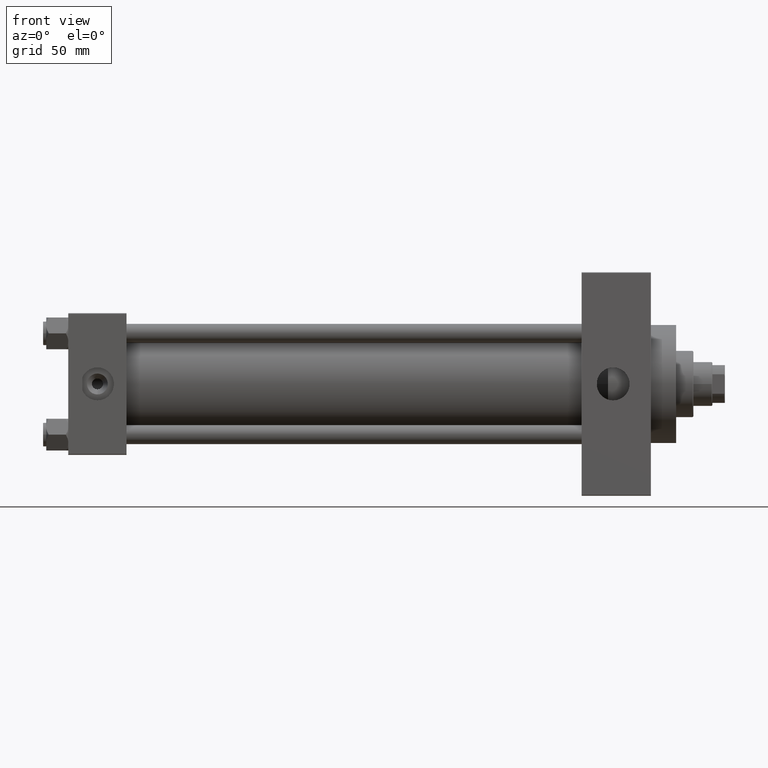
[diagram: clean part render]
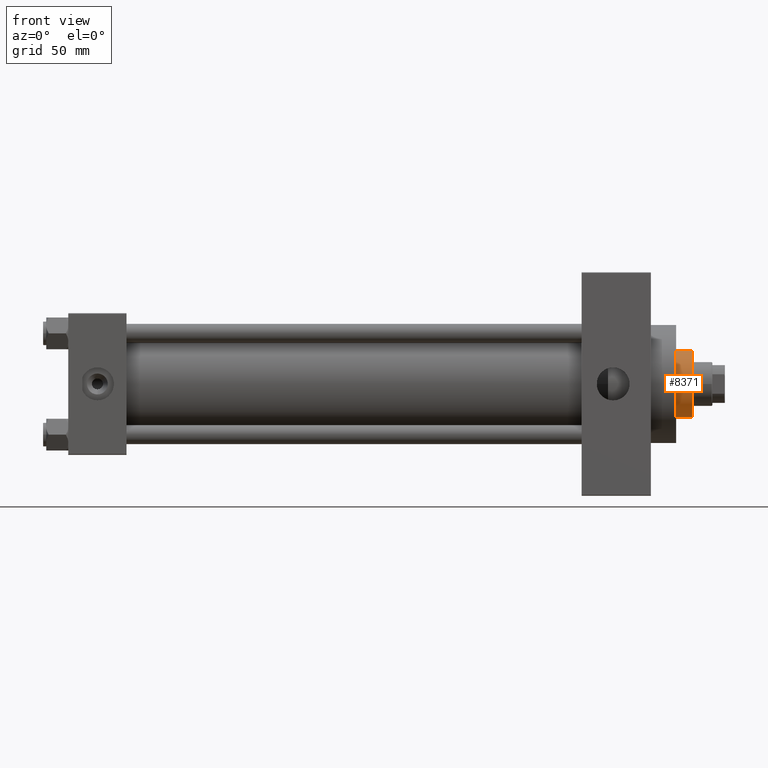
[diagram: same view with one face highlighted and labeled with its STEP entity id]
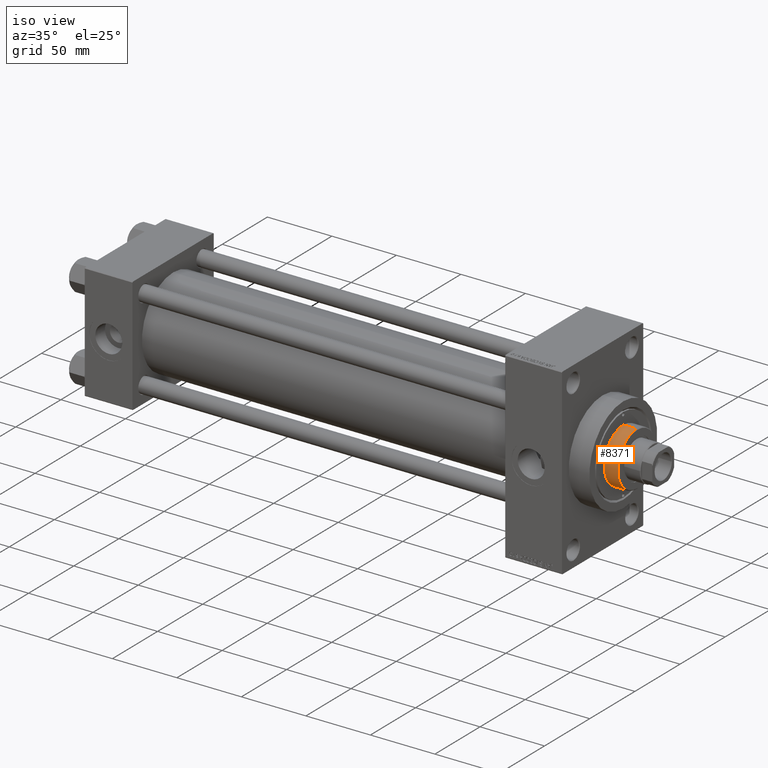
[diagram: same view with one face highlighted and labeled with its STEP entity id]
A machine part, front view. The second image highlights one B-rep face of the part: STEP entity #8371.
A second angle (iso view) of the same face is appended — the face is thin or edge-on in the first view.
In plain terms, the highlighted cylindrical surface (edge-blend (fillet) strip) has radius 21 mm, axis along (-1, 0, 0).
Its self-contained STEP definition (entity closure, byte-faithful):
#678 = CARTESIAN_POINT ( 'NONE',  ( -21.00000000000000000, 0.000000000000000000, 53.76000000000001933 ) ) ;
#891 = VECTOR ( 'NONE', #36578, 1000.000000000000000 ) ;
#1939 = VERTEX_POINT ( 'NONE', #19951 ) ;
#5183 = VECTOR ( 'NONE', #32460, 1000.000000000000000 ) ;
#8154 = CARTESIAN_POINT ( 'NONE',  ( -21.00000000000000000, 0.000000000000000000, 43.25999999999999801 ) ) ;
#8371 = ADVANCED_FACE ( 'NONE', ( #30059 ), #29822, .T. ) ;
#8974 = ORIENTED_EDGE ( 'NONE', *, *, #28358, .T. ) ;
#10898 = CARTESIAN_POINT ( 'NONE',  ( -21.00000000000000000, 0.000000000000000000, 54.26000000000000512 ) ) ;
#11376 = DIRECTION ( 'NONE',  ( -1.000000000000000000, 0.000000000000000000, 0.000000000000000000 ) ) ;
#13764 = DIRECTION ( 'NONE',  ( 1.000000000000000000, 0.000000000000000000, 0.000000000000000000 ) ) ;
#14441 = EDGE_CURVE ( 'NONE', #46626, #41029, #40355, .T. ) ;
#14553 = LINE ( 'NONE', #28941, #891 ) ;
#14823 = AXIS2_PLACEMENT_3D ( 'NONE', #25733, #43716, #28633 ) ;
#19951 = CARTESIAN_POINT ( 'NONE',  ( 21.00000000000000000, 2.571758278209441661E-15, 43.25999999999999801 ) ) ;
#21927 = DIRECTION ( 'NONE',  ( -0.000000000000000000, -0.000000000000000000, -1.000000000000000000 ) ) ;
#22124 = CARTESIAN_POINT ( 'NONE',  ( 0.000000000000000000, 0.000000000000000000, 43.25999999999999801 ) ) ;
#22578 = EDGE_CURVE ( 'NONE', #30853, #1939, #14553, .T. ) ;
#25115 = ORIENTED_EDGE ( 'NONE', *, *, #14441, .F. ) ;
#25733 = CARTESIAN_POINT ( 'NONE',  ( 0.000000000000000000, 0.000000000000000000, 53.76000000000001933 ) ) ;
#26266 = CIRCLE ( 'NONE', #14823, 21.00000000000000000 ) ;
#26465 = CARTESIAN_POINT ( 'NONE',  ( 0.000000000000000000, 0.000000000000000000, 54.26000000000000512 ) ) ;
#26818 = EDGE_CURVE ( 'NONE', #46626, #30853, #26266, .T. ) ;
#28358 = EDGE_CURVE ( 'NONE', #1939, #41029, #34724, .T. ) ;
#28633 = DIRECTION ( 'NONE',  ( 1.000000000000000000, 0.000000000000000000, 0.000000000000000000 ) ) ;
#28941 = CARTESIAN_POINT ( 'NONE',  ( 21.00000000000000000, 2.571758278209441661E-15, 54.26000000000000512 ) ) ;
#29822 = CYLINDRICAL_SURFACE ( 'NONE', #45596, 21.00000000000000000 ) ;
#30059 = FACE_OUTER_BOUND ( 'NONE', #30196, .T. ) ;
#30196 = EDGE_LOOP ( 'NONE', ( #31718, #33285, #8974, #25115 ) ) ;
#30853 = VERTEX_POINT ( 'NONE', #41399 ) ;
#31718 = ORIENTED_EDGE ( 'NONE', *, *, #26818, .T. ) ;
#32460 = DIRECTION ( 'NONE',  ( -0.000000000000000000, -0.000000000000000000, -1.000000000000000000 ) ) ;
#33285 = ORIENTED_EDGE ( 'NONE', *, *, #22578, .T. ) ;
#34724 = CIRCLE ( 'NONE', #37820, 21.00000000000000000 ) ;
#36578 = DIRECTION ( 'NONE',  ( -0.000000000000000000, -0.000000000000000000, -1.000000000000000000 ) ) ;
#36719 = DIRECTION ( 'NONE',  ( 0.000000000000000000, 0.000000000000000000, 1.000000000000000000 ) ) ;
#37820 = AXIS2_PLACEMENT_3D ( 'NONE', #22124, #36719, #13764 ) ;
#40355 = LINE ( 'NONE', #10898, #5183 ) ;
#41029 = VERTEX_POINT ( 'NONE', #8154 ) ;
#41399 = CARTESIAN_POINT ( 'NONE',  ( 21.00000000000000000, 2.571758278209441661E-15, 53.76000000000001933 ) ) ;
#43716 = DIRECTION ( 'NONE',  ( 0.000000000000000000, 0.000000000000000000, -1.000000000000000000 ) ) ;
#45596 = AXIS2_PLACEMENT_3D ( 'NONE', #26465, #21927, #11376 ) ;
#46626 = VERTEX_POINT ( 'NONE', #678 ) ;